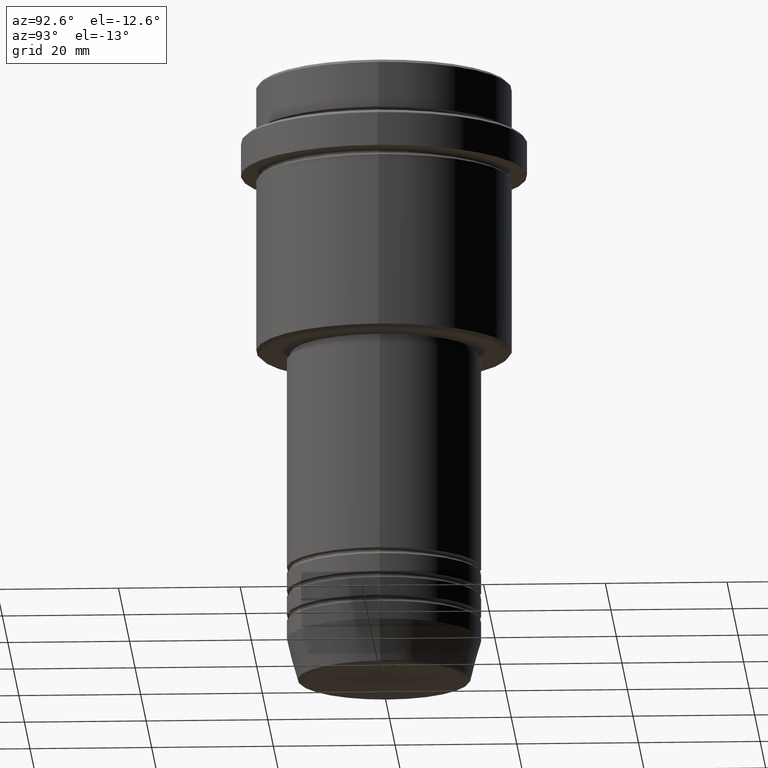
[diagram: clean part render]
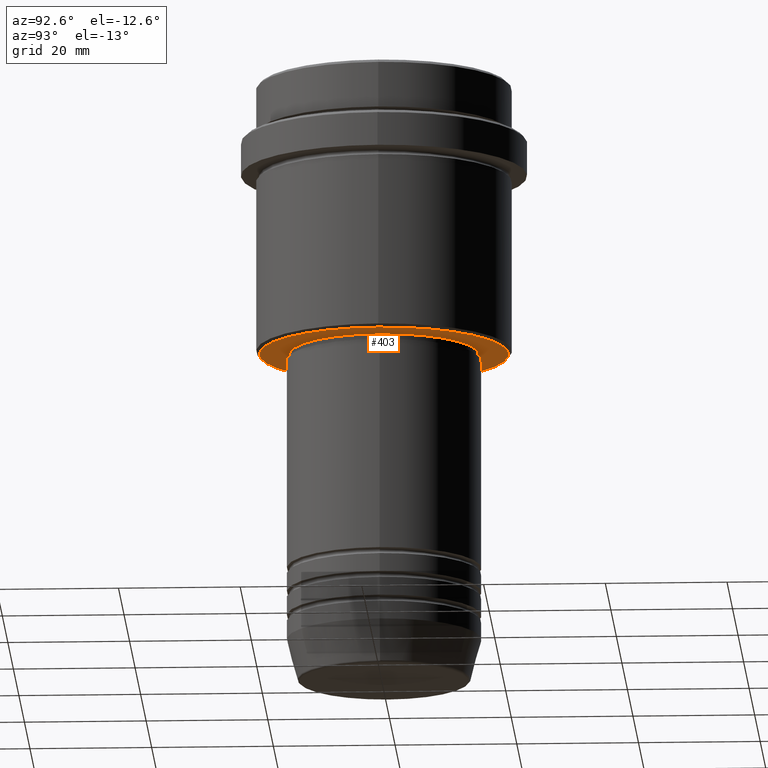
[diagram: same view with one face highlighted and labeled with its STEP entity id]
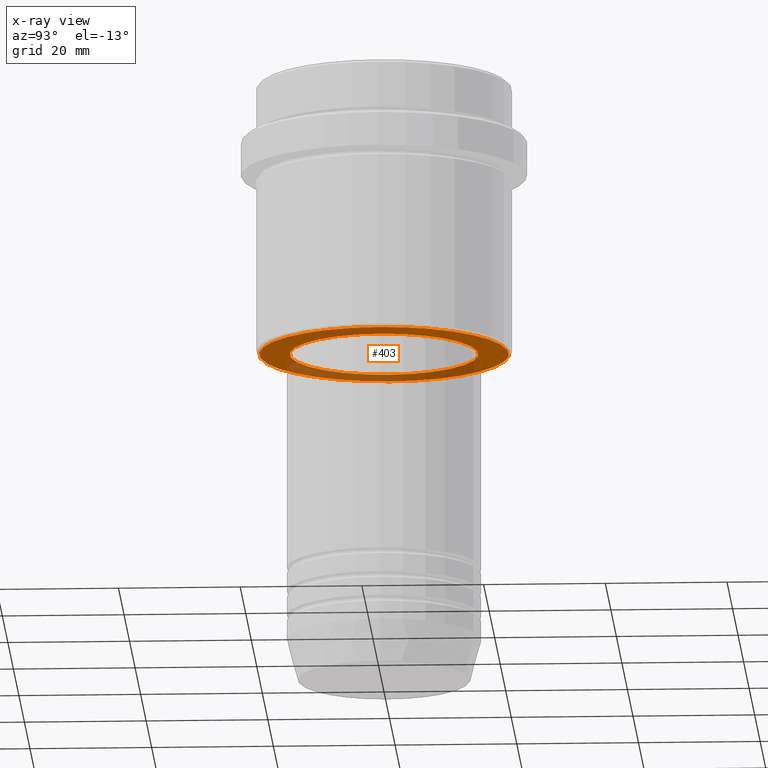
[diagram: x-ray of the same camera — body ghosted, the highlighted face saturated]
A machine part, auxiliary view. The second image highlights one B-rep face of the part: STEP entity #403.
The next image is the same camera in x-ray: the body ghosted, the highlighted face saturated — about 33% of this face is hidden behind the body in this view.
In plain terms, the highlighted planar face has unit normal (0, 0, -1).
Its self-contained STEP definition (entity closure, byte-faithful):
#1 = AXIS2_PLACEMENT_3D ( 'NONE', #550, #222, #1343 ) ;
#11 = DIRECTION ( 'NONE',  ( -0.000000000000000000, -0.000000000000000000, 1.000000000000000000 ) ) ;
#16 = DIRECTION ( 'NONE',  ( -0.000000000000000000, -0.000000000000000000, 1.000000000000000000 ) ) ;
#19 = AXIS2_PLACEMENT_3D ( 'NONE', #78, #940, #293 ) ;
#78 = CARTESIAN_POINT ( 'NONE',  ( 0.000000000000000000, 0.000000000000000000, -45.00000000000000000 ) ) ;
#122 = ORIENTED_EDGE ( 'NONE', *, *, #530, .T. ) ;
#132 = CARTESIAN_POINT ( 'NONE',  ( 0.000000000000000000, 0.000000000000000000, -44.99999999999999289 ) ) ;
#171 = EDGE_LOOP ( 'NONE', ( #122, #378 ) ) ;
#213 = CIRCLE ( 'NONE', #239, 15.49999999999999645 ) ;
#222 = DIRECTION ( 'NONE',  ( 0.000000000000000000, 0.000000000000000000, -1.000000000000000000 ) ) ;
#239 = AXIS2_PLACEMENT_3D ( 'NONE', #1089, #11, #556 ) ;
#249 = FACE_BOUND ( 'NONE', #171, .T. ) ;
#293 = DIRECTION ( 'NONE',  ( -1.000000000000000000, 0.000000000000000000, 0.000000000000000000 ) ) ;
#360 = VERTEX_POINT ( 'NONE', #584 ) ;
#364 = DIRECTION ( 'NONE',  ( 1.000000000000000000, 0.000000000000000000, 0.000000000000000000 ) ) ;
#378 = ORIENTED_EDGE ( 'NONE', *, *, #396, .T. ) ;
#396 = EDGE_CURVE ( 'NONE', #538, #360, #1254, .T. ) ;
#403 = ADVANCED_FACE ( 'NONE', ( #1215, #249 ), #788, .T. ) ;
#443 = EDGE_CURVE ( 'NONE', #1114, #1260, #629, .T. ) ;
#465 = ORIENTED_EDGE ( 'NONE', *, *, #949, .T. ) ;
#512 = CARTESIAN_POINT ( 'NONE',  ( -20.50000000000001776, 2.541142108230759057E-15, -45.00000000000000000 ) ) ;
#530 = EDGE_CURVE ( 'NONE', #360, #538, #213, .T. ) ;
#538 = VERTEX_POINT ( 'NONE', #1193 ) ;
#550 = CARTESIAN_POINT ( 'NONE',  ( 0.000000000000000000, 0.000000000000000000, -45.00000000000000000 ) ) ;
#556 = DIRECTION ( 'NONE',  ( 1.000000000000000000, 0.000000000000000000, 0.000000000000000000 ) ) ;
#584 = CARTESIAN_POINT ( 'NONE',  ( 15.49999999999999645, 0.000000000000000000, -44.99999999999999289 ) ) ;
#629 = CIRCLE ( 'NONE', #19, 20.50000000000001776 ) ;
#637 = ORIENTED_EDGE ( 'NONE', *, *, #443, .T. ) ;
#665 = DIRECTION ( 'NONE',  ( 0.000000000000000000, 0.000000000000000000, -1.000000000000000000 ) ) ;
#683 = DIRECTION ( 'NONE',  ( -1.000000000000000000, 0.000000000000000000, -0.000000000000000000 ) ) ;
#788 = PLANE ( 'NONE',  #1323 ) ;
#893 = CARTESIAN_POINT ( 'NONE',  ( 0.000000000000000000, 21.00000000000000000, -45.00000000000000000 ) ) ;
#940 = DIRECTION ( 'NONE',  ( 0.000000000000000000, 0.000000000000000000, -1.000000000000000000 ) ) ;
#949 = EDGE_CURVE ( 'NONE', #1260, #1114, #1303, .T. ) ;
#1010 = CARTESIAN_POINT ( 'NONE',  ( 20.50000000000001776, 0.000000000000000000, -45.00000000000000000 ) ) ;
#1089 = CARTESIAN_POINT ( 'NONE',  ( 0.000000000000000000, 0.000000000000000000, -44.99999999999999289 ) ) ;
#1114 = VERTEX_POINT ( 'NONE', #1010 ) ;
#1138 = EDGE_LOOP ( 'NONE', ( #637, #465 ) ) ;
#1181 = AXIS2_PLACEMENT_3D ( 'NONE', #132, #16, #364 ) ;
#1193 = CARTESIAN_POINT ( 'NONE',  ( -15.49999999999999645, 1.898202538678397163E-15, -44.99999999999999289 ) ) ;
#1215 = FACE_OUTER_BOUND ( 'NONE', #1138, .T. ) ;
#1254 = CIRCLE ( 'NONE', #1181, 15.49999999999999645 ) ;
#1260 = VERTEX_POINT ( 'NONE', #512 ) ;
#1303 = CIRCLE ( 'NONE', #1, 20.50000000000001776 ) ;
#1323 = AXIS2_PLACEMENT_3D ( 'NONE', #893, #665, #683 ) ;
#1343 = DIRECTION ( 'NONE',  ( -1.000000000000000000, 0.000000000000000000, 0.000000000000000000 ) ) ;